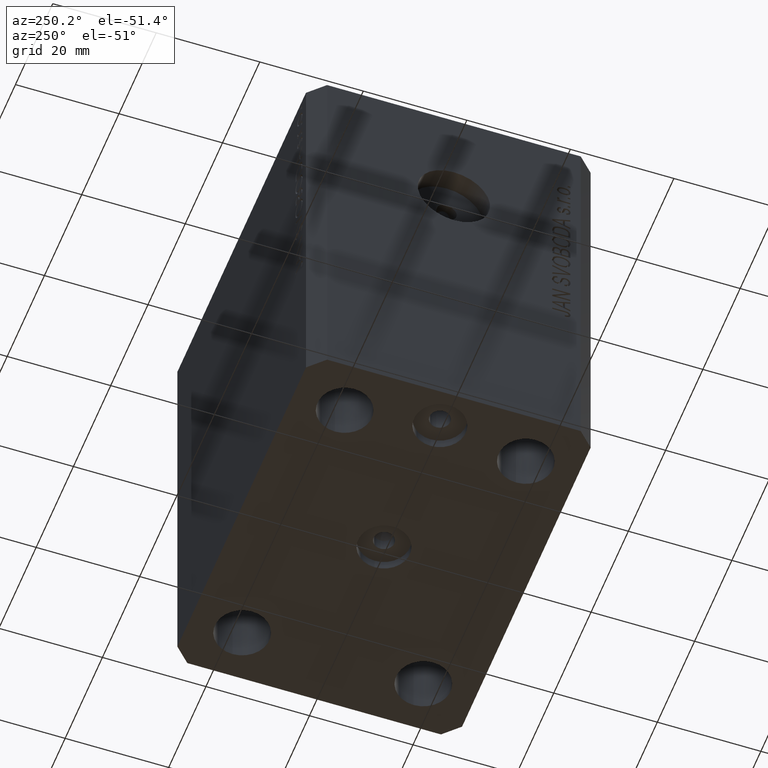
[diagram: clean part render]
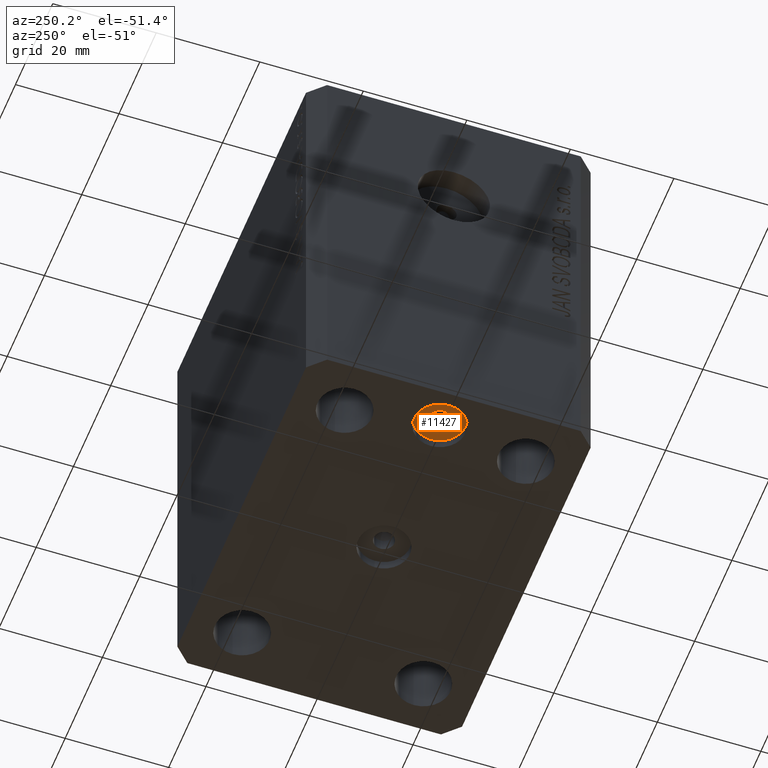
[diagram: same view with one face highlighted and labeled with its STEP entity id]
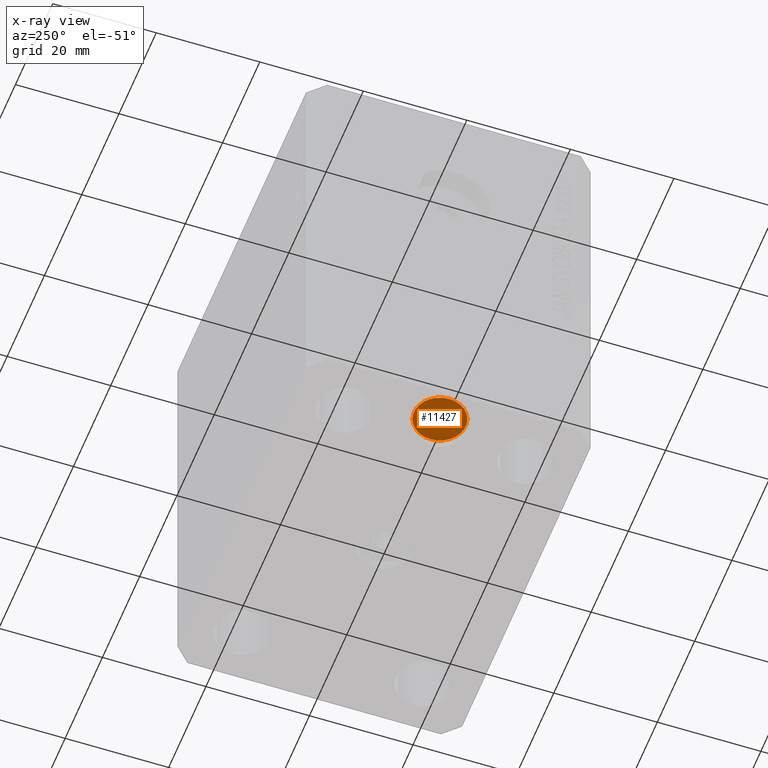
[diagram: x-ray of the same camera — body ghosted, the highlighted face saturated]
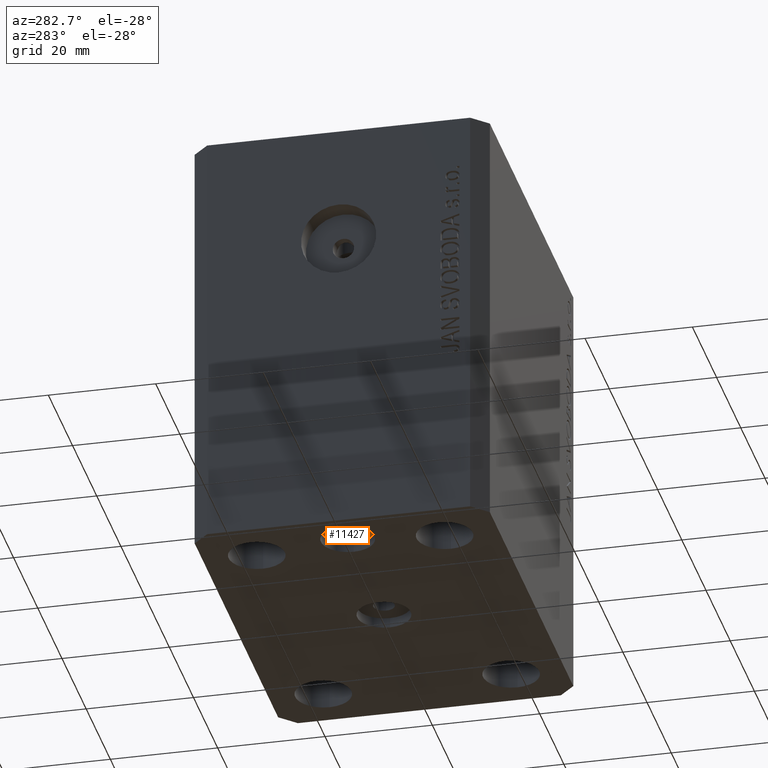
[diagram: same view with one face highlighted and labeled with its STEP entity id]
A machine part, auxiliary view. The second image highlights one B-rep face of the part: STEP entity #11427.
The next image is the same camera in x-ray: the body ghosted, the highlighted face saturated — about 0% of this face is hidden behind the body in this view.
A second angle (auxiliary view) of the same face is appended — the face is thin or edge-on in the first view.
In plain terms, the highlighted planar face has unit normal (0, 0, -1).
Its self-contained STEP definition (entity closure, byte-faithful):
#83 = DIRECTION ( 'NONE',  ( -1.000000000000000000, 0.000000000000000000, 0.000000000000000000 ) ) ;
#210 = CARTESIAN_POINT ( 'NONE',  ( -25.00000000000000000, 6.123233995736762338E-16, -78.10000000000000853 ) ) ;
#801 = DIRECTION ( 'NONE',  ( 0.000000000000000000, 0.000000000000000000, -1.000000000000000000 ) ) ;
#1909 = VERTEX_POINT ( 'NONE', #210 ) ;
#2590 = FACE_OUTER_BOUND ( 'NONE', #16039, .T. ) ;
#3977 = VERTEX_POINT ( 'NONE', #23657 ) ;
#4911 = VERTEX_POINT ( 'NONE', #14675 ) ;
#8379 = CIRCLE ( 'NONE', #12009, 2.000000000000001776 ) ;
#10491 = CIRCLE ( 'NONE', #40115, 2.000000000000001776 ) ;
#11427 = ADVANCED_FACE ( 'NONE', ( #23843, #2590 ), #37422, .T. ) ;
#11879 = DIRECTION ( 'NONE',  ( -1.000000000000000000, 0.000000000000000000, 0.000000000000000000 ) ) ;
#12009 = AXIS2_PLACEMENT_3D ( 'NONE', #43704, #16335, #33074 ) ;
#13965 = VERTEX_POINT ( 'NONE', #22934 ) ;
#14370 = CARTESIAN_POINT ( 'NONE',  ( -30.00000000000000000, 0.000000000000000000, -78.10000000000000853 ) ) ;
#14588 = DIRECTION ( 'NONE',  ( -1.000000000000000000, 0.000000000000000000, 0.000000000000000000 ) ) ;
#14675 = CARTESIAN_POINT ( 'NONE',  ( -27.99999999999999645, 2.449293598294711345E-16, -78.10000000000000853 ) ) ;
#16039 = EDGE_LOOP ( 'NONE', ( #16403, #20669 ) ) ;
#16335 = DIRECTION ( 'NONE',  ( 0.000000000000000000, 0.000000000000000000, -1.000000000000000000 ) ) ;
#16403 = ORIENTED_EDGE ( 'NONE', *, *, #23313, .T. ) ;
#17622 = EDGE_CURVE ( 'NONE', #3977, #4911, #10491, .T. ) ;
#18418 = EDGE_LOOP ( 'NONE', ( #34146, #30550 ) ) ;
#18718 = CIRCLE ( 'NONE', #37543, 4.999999999999997335 ) ;
#20669 = ORIENTED_EDGE ( 'NONE', *, *, #41021, .T. ) ;
#22009 = CIRCLE ( 'NONE', #24180, 4.999999999999997335 ) ;
#22049 = CARTESIAN_POINT ( 'NONE',  ( -30.00000000000000000, 0.000000000000000000, -78.10000000000000853 ) ) ;
#22934 = CARTESIAN_POINT ( 'NONE',  ( -34.99999999999999289, 0.000000000000000000, -78.10000000000000853 ) ) ;
#23175 = CARTESIAN_POINT ( 'NONE',  ( -30.00000000000000000, 0.000000000000000000, -78.10000000000000853 ) ) ;
#23313 = EDGE_CURVE ( 'NONE', #13965, #1909, #22009, .T. ) ;
#23657 = CARTESIAN_POINT ( 'NONE',  ( -32.00000000000000000, 0.000000000000000000, -78.10000000000000853 ) ) ;
#23843 = FACE_BOUND ( 'NONE', #18418, .T. ) ;
#24180 = AXIS2_PLACEMENT_3D ( 'NONE', #22049, #42191, #11879 ) ;
#26996 = EDGE_CURVE ( 'NONE', #4911, #3977, #8379, .T. ) ;
#30550 = ORIENTED_EDGE ( 'NONE', *, *, #26996, .F. ) ;
#33074 = DIRECTION ( 'NONE',  ( -1.000000000000000000, 0.000000000000000000, 0.000000000000000000 ) ) ;
#34146 = ORIENTED_EDGE ( 'NONE', *, *, #17622, .F. ) ;
#34226 = CARTESIAN_POINT ( 'NONE',  ( -30.00000000000000000, 0.000000000000000000, -78.10000000000000853 ) ) ;
#35135 = DIRECTION ( 'NONE',  ( 0.000000000000000000, 0.000000000000000000, -1.000000000000000000 ) ) ;
#36977 = DIRECTION ( 'NONE',  ( 0.000000000000000000, 0.000000000000000000, -1.000000000000000000 ) ) ;
#37422 = PLANE ( 'NONE',  #42136 ) ;
#37543 = AXIS2_PLACEMENT_3D ( 'NONE', #34226, #35135, #83 ) ;
#40115 = AXIS2_PLACEMENT_3D ( 'NONE', #14370, #801, #14588 ) ;
#40585 = DIRECTION ( 'NONE',  ( -1.000000000000000000, 0.000000000000000000, -0.000000000000000000 ) ) ;
#41021 = EDGE_CURVE ( 'NONE', #1909, #13965, #18718, .T. ) ;
#42136 = AXIS2_PLACEMENT_3D ( 'NONE', #23175, #36977, #40585 ) ;
#42191 = DIRECTION ( 'NONE',  ( 0.000000000000000000, 0.000000000000000000, -1.000000000000000000 ) ) ;
#43704 = CARTESIAN_POINT ( 'NONE',  ( -30.00000000000000000, 0.000000000000000000, -78.10000000000000853 ) ) ;